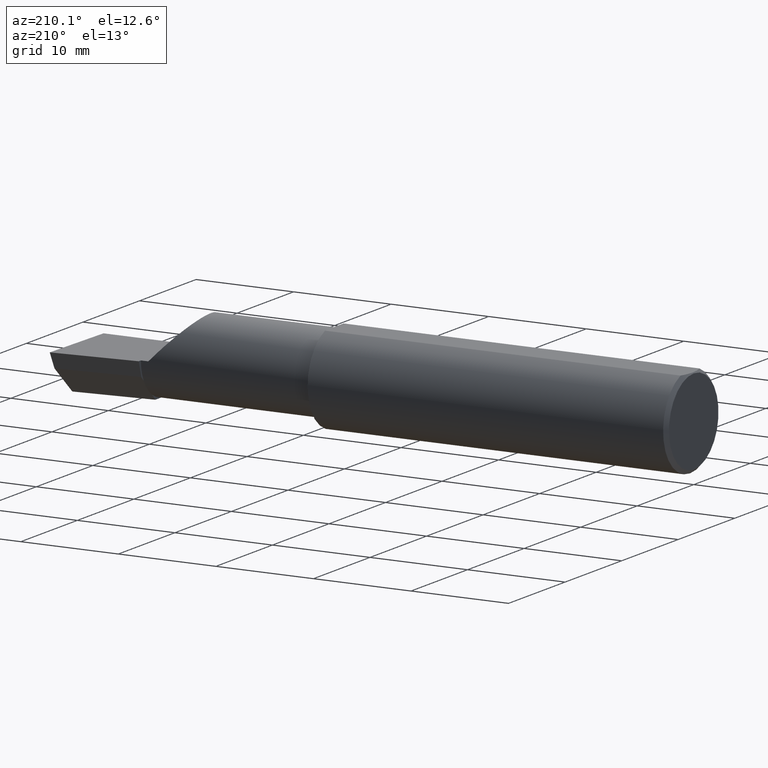
[diagram: clean part render]
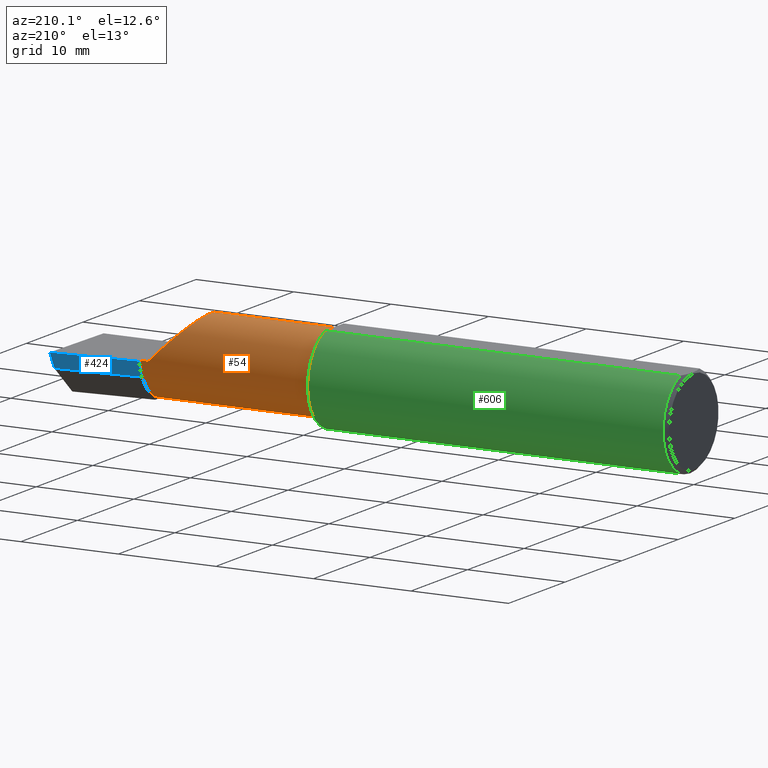
[diagram: same view with three faces highlighted in distinct colors, each labeled with its STEP entity id]
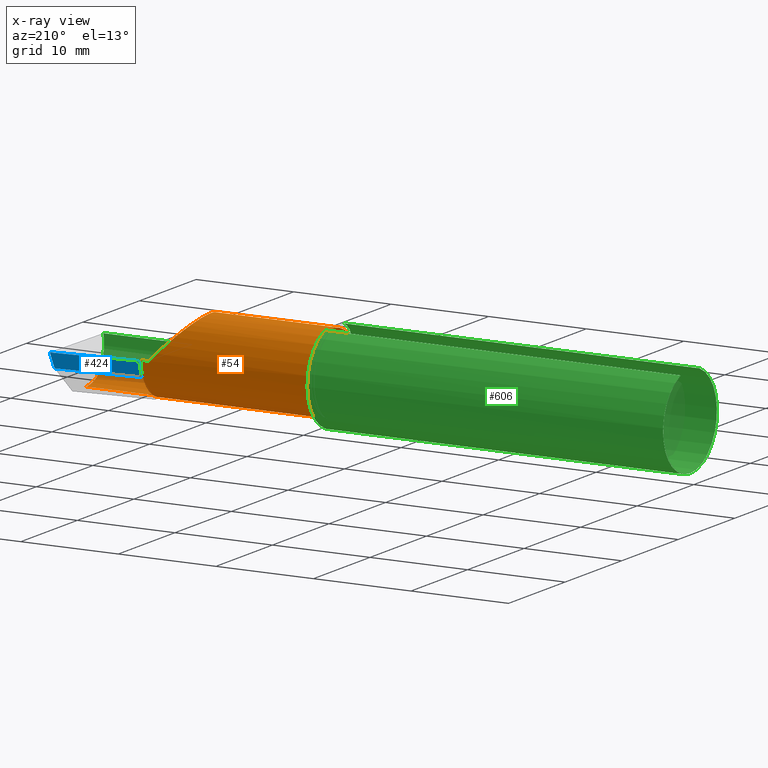
[diagram: x-ray of the same camera — body ghosted, the three highlighted faces saturated]
A machine part, auxiliary view with three faces highlighted in distinct colors.
The next image is the same camera in x-ray (body ghosted, the three faces saturated) — at least one of them is partly hidden behind the body in this view.
Their STEP definitions:

[orange] entity #54 — the highlighted cylindrical surface (partial cylindrical patch) has radius 4.0653 mm, axis along (-1, 0, -0).
#1 = EDGE_CURVE ( 'NONE', #325, #211, #90, .T. ) ;
#4 = CARTESIAN_POINT ( 'NONE',  ( 2.477223734188808812, -0.1454917112299466964, -0.1180346748349052066 ) ) ;
#6 = VERTEX_POINT ( 'NONE', #79 ) ;
#11 = CARTESIAN_POINT ( 'NONE',  ( 2.160000000000000142, -0.03740000000000000269, 0.000000000000000000 ) ) ;
#24 = ORIENTED_EDGE ( 'NONE', *, *, #335, .T. ) ;
#35 = VERTEX_POINT ( 'NONE', #41 ) ;
#41 = CARTESIAN_POINT ( 'NONE',  ( 2.160000000000000142, 0.1028057716897400747, -0.07719031082256667953 ) ) ;
#51 = CARTESIAN_POINT ( 'NONE',  ( 2.474893613600468445, -0.03739999999999999575, -0.1600499999999999701 ) ) ;
#54 = ADVANCED_FACE ( 'NONE', ( #178 ), #571, .T. ) ;
#62 = VERTEX_POINT ( 'NONE', #435 ) ;
#65 = VERTEX_POINT ( 'NONE', #550 ) ;
#79 = CARTESIAN_POINT ( 'NONE',  ( 2.129999999999999893, 0.1226499999999998147, 1.065442715258197396E-16 ) ) ;
#88 = VERTEX_POINT ( 'NONE', #485 ) ;
#90 = LINE ( 'NONE', #370, #378 ) ;
#100 = VECTOR ( 'NONE', #161, 39.37007874015748143 ) ;
#103 = CARTESIAN_POINT ( 'NONE',  ( 2.473833329693935656, -0.07789060880782654184, -0.1600499999999999701 ) ) ;
#104 = CARTESIAN_POINT ( 'NONE',  ( 2.500000000000000000, -0.03739999999999999575, -0.1600499999999999701 ) ) ;
#109 = CIRCLE ( 'NONE', #548, 0.1600499999999999423 ) ;
#111 = CARTESIAN_POINT ( 'NONE',  ( 2.160000000000000142, -0.03740000000000000269, 0.000000000000000000 ) ) ;
#128 = DIRECTION ( 'NONE',  ( -1.000000000000000000, 6.829619984160658046E-18, -0.000000000000000000 ) ) ;
#129 = VECTOR ( 'NONE', #266, 39.37007874015748143 ) ;
#132 = CARTESIAN_POINT ( 'NONE',  ( 0.000000000000000000, -0.03739999999999998881, 0.000000000000000000 ) ) ;
#134 = CARTESIAN_POINT ( 'NONE',  ( 2.160000000000000142, -0.03739999999999999575, -0.1600499999999999701 ) ) ;
#147 = DIRECTION ( 'NONE',  ( -1.000000000000000000, 6.829619984160658046E-18, -0.000000000000000000 ) ) ;
#154 = LINE ( 'NONE', #104, #100 ) ;
#157 = LINE ( 'NONE', #351, #129 ) ;
#161 = DIRECTION ( 'NONE',  ( -1.000000000000000000, 5.691349986800549142E-18, -0.000000000000000000 ) ) ;
#171 = EDGE_LOOP ( 'NONE', ( #345, #561, #248, #574, #24, #196, #311, #466, #483, #412 ) ) ;
#177 = CARTESIAN_POINT ( 'NONE',  ( 1.474999999999999867, -0.1454917112299468351, 0.1180346748349049985 ) ) ;
#178 = FACE_OUTER_BOUND ( 'NONE', #171, .T. ) ;
#190 = CIRCLE ( 'NONE', #391, 0.1600499999999999701 ) ;
#196 = ORIENTED_EDGE ( 'NONE', *, *, #630, .T. ) ;
#211 = VERTEX_POINT ( 'NONE', #594 ) ;
#229 = CIRCLE ( 'NONE', #479, 0.1600499999999999146 ) ;
#246 = EDGE_CURVE ( 'NONE', #601, #62, #560, .T. ) ;
#248 = ORIENTED_EDGE ( 'NONE', *, *, #622, .F. ) ;
#249 = CARTESIAN_POINT ( 'NONE',  ( 2.474646882977779239, -0.1156304438478838320, -0.1453804992321580947 ) ) ;
#259 =( BOUNDED_CURVE ( )  B_SPLINE_CURVE ( 3, ( #260, #460, #417, #513 ),
 .UNSPECIFIED., .F., .F. ) 
 B_SPLINE_CURVE_WITH_KNOTS ( ( 4, 4 ),
 ( 5.541729662751388119, 7.853981633974482790 ),
 .UNSPECIFIED. ) 
 CURVE ( )  GEOMETRIC_REPRESENTATION_ITEM ( )  RATIONAL_B_SPLINE_CURVE ( ( 1.000000000000000000, 0.6019254882129727591, 0.6019254882129727591, 1.000000000000000000 ) ) 
 REPRESENTATION_ITEM ( '' )  );
#260 = CARTESIAN_POINT ( 'NONE',  ( 2.011965325165093077, -0.1454917112299463633, 0.1180346748349055119 ) ) ;
#263 =( BOUNDED_CURVE ( )  B_SPLINE_CURVE ( 3, ( #4, #249, #103, #51 ),
 .UNSPECIFIED., .F., .F. ) 
 B_SPLINE_CURVE_WITH_KNOTS ( ( 4, 4 ),
 ( 5.751779107031784299, 6.493234751459985965 ),
 .UNSPECIFIED. ) 
 CURVE ( )  GEOMETRIC_REPRESENTATION_ITEM ( )  RATIONAL_B_SPLINE_CURVE ( ( 1.000000000000000000, 0.9547092712975351336, 0.9547092712975351336, 1.000000000000000000 ) ) 
 REPRESENTATION_ITEM ( '' )  );
#266 = DIRECTION ( 'NONE',  ( 1.000000000000000000, -6.829619984160658046E-18, 0.000000000000000000 ) ) ;
#284 = CARTESIAN_POINT ( 'NONE',  ( 2.160000000000000142, -0.03740000000000000269, 0.000000000000000000 ) ) ;
#301 = AXIS2_PLACEMENT_3D ( 'NONE', #132, #389, #310 ) ;
#303 = AXIS2_PLACEMENT_3D ( 'NONE', #284, #147, #427 ) ;
#310 = DIRECTION ( 'NONE',  ( -6.829619984160658816E-18, -1.000000000000000000, 0.000000000000000000 ) ) ;
#311 = ORIENTED_EDGE ( 'NONE', *, *, #525, .T. ) ;
#322 = DIRECTION ( 'NONE',  ( 1.000000000000000000, -6.829619984160658046E-18, 0.000000000000000000 ) ) ;
#325 = VERTEX_POINT ( 'NONE', #177 ) ;
#334 = VECTOR ( 'NONE', #128, 39.37007874015748143 ) ;
#335 = EDGE_CURVE ( 'NONE', #211, #6, #259, .T. ) ;
#344 = DIRECTION ( 'NONE',  ( -1.000000000000000000, 6.829619984160658046E-18, -0.000000000000000000 ) ) ;
#345 = ORIENTED_EDGE ( 'NONE', *, *, #535, .F. ) ;
#351 = CARTESIAN_POINT ( 'NONE',  ( 1.093080678464946554E-18, 0.1226499999999999257, 3.267291166268304703E-16 ) ) ;
#370 = CARTESIAN_POINT ( 'NONE',  ( 1.817499999999999893, -0.1454917112299466964, 0.1180346748349052066 ) ) ;
#378 = VECTOR ( 'NONE', #322, 39.37007874015748143 ) ;
#389 = DIRECTION ( 'NONE',  ( -1.000000000000000000, 6.829619984160658046E-18, -0.000000000000000000 ) ) ;
#391 = AXIS2_PLACEMENT_3D ( 'NONE', #111, #344, #539 ) ;
#410 = DIRECTION ( 'NONE',  ( 1.000000000000000000, -6.829619984160658046E-18, 0.000000000000000000 ) ) ;
#412 = ORIENTED_EDGE ( 'NONE', *, *, #599, .F. ) ;
#417 = CARTESIAN_POINT ( 'NONE',  ( 1.967758842172328437, 0.1226499999999999396, 0.1622411578276699295 ) ) ;
#423 = VERTEX_POINT ( 'NONE', #134 ) ;
#427 = DIRECTION ( 'NONE',  ( 0.000000000000000000, -1.000000000000000000, 0.000000000000000000 ) ) ;
#428 = CIRCLE ( 'NONE', #303, 0.1600499999999999701 ) ;
#435 = CARTESIAN_POINT ( 'NONE',  ( 1.474999999999999867, -0.1454917112299464743, -0.1180346748349053593 ) ) ;
#460 = CARTESIAN_POINT ( 'NONE',  ( 1.902393788885675230, -0.02584108761840239049, 0.2276062111143221656 ) ) ;
#461 = VERTEX_POINT ( 'NONE', #484 ) ;
#466 = ORIENTED_EDGE ( 'NONE', *, *, #554, .F. ) ;
#471 = EDGE_CURVE ( 'NONE', #461, #423, #428, .T. ) ;
#479 = AXIS2_PLACEMENT_3D ( 'NONE', #537, #542, #595 ) ;
#483 = ORIENTED_EDGE ( 'NONE', *, *, #471, .T. ) ;
#484 = CARTESIAN_POINT ( 'NONE',  ( 2.160000000000000142, 0.04400172171466205928, -0.1378033461200731946 ) ) ;
#485 = CARTESIAN_POINT ( 'NONE',  ( 2.474893613600468445, -0.03739999999999999575, -0.1600499999999999701 ) ) ;
#498 = CARTESIAN_POINT ( 'NONE',  ( 2.477223734188808812, -0.1454917112299466964, -0.1180346748349052066 ) ) ;
#501 = DIRECTION ( 'NONE',  ( 0.000000000000000000, -1.000000000000000000, -1.776356839400250465E-15 ) ) ;
#513 = CARTESIAN_POINT ( 'NONE',  ( 2.129999999999999893, 0.1226499999999998147, 1.065442715258197396E-16 ) ) ;
#525 = EDGE_CURVE ( 'NONE', #65, #35, #190, .T. ) ;
#535 = EDGE_CURVE ( 'NONE', #601, #88, #263, .T. ) ;
#537 = CARTESIAN_POINT ( 'NONE',  ( 1.474999999999999867, -0.03739999999999999575, 0.000000000000000000 ) ) ;
#539 = DIRECTION ( 'NONE',  ( 0.000000000000000000, -1.000000000000000000, 0.000000000000000000 ) ) ;
#542 = DIRECTION ( 'NONE',  ( -1.000000000000000000, 6.829619984160658046E-18, -0.000000000000000000 ) ) ;
#548 = AXIS2_PLACEMENT_3D ( 'NONE', #11, #410, #501 ) ;
#550 = CARTESIAN_POINT ( 'NONE',  ( 2.160000000000000142, 0.1226499999999999674, 3.267291166268306182E-16 ) ) ;
#554 = EDGE_CURVE ( 'NONE', #461, #35, #109, .T. ) ;
#560 = LINE ( 'NONE', #618, #334 ) ;
#561 = ORIENTED_EDGE ( 'NONE', *, *, #246, .T. ) ;
#571 = CYLINDRICAL_SURFACE ( 'NONE', #301, 0.1600499999999999423 ) ;
#574 = ORIENTED_EDGE ( 'NONE', *, *, #1, .T. ) ;
#594 = CARTESIAN_POINT ( 'NONE',  ( 2.011965325165093077, -0.1454917112299463633, 0.1180346748349055119 ) ) ;
#595 = DIRECTION ( 'NONE',  ( 0.000000000000000000, -1.000000000000000000, 0.000000000000000000 ) ) ;
#599 = EDGE_CURVE ( 'NONE', #88, #423, #154, .T. ) ;
#601 = VERTEX_POINT ( 'NONE', #498 ) ;
#618 = CARTESIAN_POINT ( 'NONE',  ( 1.817499999999999893, -0.1454917112299466964, -0.1180346748349052066 ) ) ;
#622 = EDGE_CURVE ( 'NONE', #325, #62, #229, .T. ) ;
#630 = EDGE_CURVE ( 'NONE', #6, #65, #157, .T. ) ;

[blue] entity #424 — the highlighted planar face has unit normal (-0.0917, 0.9519, -0.2924).
#5 = AXIS2_PLACEMENT_3D ( 'NONE', #89, #183, #293 ) ;
#36 = EDGE_CURVE ( 'NONE', #362, #386, #433, .T. ) ;
#45 = ORIENTED_EDGE ( 'NONE', *, *, #562, .T. ) ;
#50 = PLANE ( 'NONE',  #5 ) ;
#84 = CARTESIAN_POINT ( 'NONE',  ( 2.500188977433833504, 0.1711105994646693607, 0.001440373173035005379 ) ) ;
#89 = CARTESIAN_POINT ( 'NONE',  ( 2.509953961983671267, 0.1716084575252020683, -6.829619984160658046E-17 ) ) ;
#92 = EDGE_CURVE ( 'NONE', #156, #386, #448, .T. ) ;
#113 = ORIENTED_EDGE ( 'NONE', *, *, #36, .F. ) ;
#156 = VERTEX_POINT ( 'NONE', #635 ) ;
#162 = LINE ( 'NONE', #357, #261 ) ;
#183 = DIRECTION ( 'NONE',  ( -0.09165774897393340337, 0.9519021185660613282, -0.2923717047227306631 ) ) ;
#188 = VECTOR ( 'NONE', #451, 39.37007874015748143 ) ;
#226 = EDGE_CURVE ( 'NONE', #156, #415, #162, .T. ) ;
#227 = CARTESIAN_POINT ( 'NONE',  ( 2.160000000000000142, 0.1194830407249524440, -0.05999999999999999084 ) ) ;
#251 = VECTOR ( 'NONE', #333, 39.37007874015748143 ) ;
#261 = VECTOR ( 'NONE', #348, 39.37007874015748143 ) ;
#270 = EDGE_LOOP ( 'NONE', ( #113, #45, #490, #506 ) ) ;
#293 = DIRECTION ( 'NONE',  ( 0.000000000000000000, 0.2936076258024064023, 0.9559260233253795702 ) ) ;
#296 = LINE ( 'NONE', #491, #634 ) ;
#302 = CARTESIAN_POINT ( 'NONE',  ( 0.3393181374772696324, -0.03739999999999998881, 2.916527262322783071E-16 ) ) ;
#321 = CARTESIAN_POINT ( 'NONE',  ( 2.492127980275578913, 0.1514633278254541304, -0.05999999999999998390 ) ) ;
#329 = FACE_OUTER_BOUND ( 'NONE', #270, .T. ) ;
#333 = DIRECTION ( 'NONE',  ( 0.1240019227989975908, 0.3022330132596680041, 0.9451342385281219505 ) ) ;
#348 = DIRECTION ( 'NONE',  ( -2.005228508682078977E-18, -0.2936076258024064023, -0.9559260233253795702 ) ) ;
#357 = CARTESIAN_POINT ( 'NONE',  ( 2.160000000000000142, 0.1346188438362106166, -0.01072093908174519966 ) ) ;
#362 = VERTEX_POINT ( 'NONE', #321 ) ;
#386 = VERTEX_POINT ( 'NONE', #392 ) ;
#392 = CARTESIAN_POINT ( 'NONE',  ( 2.500000000000034195, 0.1706500000000318318, 9.292204874308774392E-14 ) ) ;
#415 = VERTEX_POINT ( 'NONE', #227 ) ;
#424 = ADVANCED_FACE ( 'NONE', ( #329 ), #50, .T. ) ;
#433 = LINE ( 'NONE', #84, #251 ) ;
#448 = LINE ( 'NONE', #302, #188 ) ;
#451 = DIRECTION ( 'NONE',  ( 0.9953961983671787417, 0.09584575252022459191, -1.028972571603813720E-16 ) ) ;
#490 = ORIENTED_EDGE ( 'NONE', *, *, #226, .F. ) ;
#491 = CARTESIAN_POINT ( 'NONE',  ( 2.511712141217646632, 0.1533490680423130470, -0.05999999999999999084 ) ) ;
#506 = ORIENTED_EDGE ( 'NONE', *, *, #92, .T. ) ;
#549 = DIRECTION ( 'NONE',  ( -0.9953961983671800740, -0.09584575252021031166, 0.000000000000000000 ) ) ;
#562 = EDGE_CURVE ( 'NONE', #362, #415, #296, .T. ) ;
#634 = VECTOR ( 'NONE', #549, 39.37007874015748854 ) ;
#635 = CARTESIAN_POINT ( 'NONE',  ( 2.160000000000000142, 0.1379117236128417356, 3.286754617377316716E-16 ) ) ;

[green] entity #606 — the highlighted cylindrical surface (partial cylindrical patch) has radius 4.7587 mm, axis along (-1, -0, -0).
#1 = EDGE_CURVE ( 'NONE', #325, #211, #90, .T. ) ;
#3 = ORIENTED_EDGE ( 'NONE', *, *, #240, .T. ) ;
#7 = CARTESIAN_POINT ( 'NONE',  ( 2.477223734188808812, -0.1454917112299466964, -0.1180346748349052066 ) ) ;
#9 = CARTESIAN_POINT ( 'NONE',  ( 1.458327409769773153, -0.1182546610979334223, 0.1455684145307631072 ) ) ;
#13 = ORIENTED_EDGE ( 'NONE', *, *, #488, .F. ) ;
#16 = CARTESIAN_POINT ( 'NONE',  ( 1.473888626799698676, -0.1454917112299466131, 0.1180346748349054009 ) ) ;
#25 =( BOUNDED_CURVE ( )  B_SPLINE_CURVE ( 3, ( #447, #403, #454, #591 ),
 .UNSPECIFIED., .F., .F. ) 
 B_SPLINE_CURVE_WITH_KNOTS ( ( 4, 4 ),
 ( 4.712388980384689674, 5.393970886271889142 ),
 .UNSPECIFIED. ) 
 CURVE ( )  GEOMETRIC_REPRESENTATION_ITEM ( )  RATIONAL_B_SPLINE_CURVE ( ( 1.000000000000000000, 0.9616603987079548332, 0.9616603987079548332, 1.000000000000000000 ) ) 
 REPRESENTATION_ITEM ( '' )  );
#26 = LINE ( 'NONE', #522, #102 ) ;
#39 = CARTESIAN_POINT ( 'NONE',  ( 1.470088327122037963, -0.1434986192849193043, -0.1204547541528185328 ) ) ;
#40 = VECTOR ( 'NONE', #476, 39.37007874015748143 ) ;
#44 = EDGE_CURVE ( 'NONE', #53, #475, #159, .T. ) ;
#48 = ORIENTED_EDGE ( 'NONE', *, *, #628, .T. ) ;
#53 = VERTEX_POINT ( 'NONE', #523 ) ;
#59 = CARTESIAN_POINT ( 'NONE',  ( 0.000000000000000000, -0.06597272163553657975, 0.1753499999999999781 ) ) ;
#62 = VERTEX_POINT ( 'NONE', #435 ) ;
#63 = CARTESIAN_POINT ( 'NONE',  ( 2.480648201915109929, -0.1728409665178087806, -0.08432347972837171690 ) ) ;
#75 = VERTEX_POINT ( 'NONE', #141 ) ;
#80 = AXIS2_PLACEMENT_3D ( 'NONE', #176, #373, #130 ) ;
#90 = LINE ( 'NONE', #370, #378 ) ;
#93 = CARTESIAN_POINT ( 'NONE',  ( 1.462916881138097036, -0.1325294370633277874, -0.1325423110575149888 ) ) ;
#95 = CARTESIAN_POINT ( 'NONE',  ( 1.449999999999999734, -0.04186526254461760133, -0.1829978128711760021 ) ) ;
#97 = DIRECTION ( 'NONE',  ( -1.000000000000000000, -0.000000000000000000, -0.000000000000000000 ) ) ;
#102 = VECTOR ( 'NONE', #365, 39.37007874015748143 ) ;
#105 = CARTESIAN_POINT ( 'NONE',  ( 1.474999999999999867, -0.1454917112299468351, 0.1180346748349049985 ) ) ;
#107 = EDGE_CURVE ( 'NONE', #536, #325, #371, .T. ) ;
#108 = CARTESIAN_POINT ( 'NONE',  ( 1.453931069367344842, -0.09745462642916678797, 0.1609342754328617620 ) ) ;
#128 = DIRECTION ( 'NONE',  ( -1.000000000000000000, 6.829619984160658046E-18, -0.000000000000000000 ) ) ;
#130 = DIRECTION ( 'NONE',  ( 0.000000000000000000, 0.000000000000000000, 1.000000000000000000 ) ) ;
#137 = VERTEX_POINT ( 'NONE', #533 ) ;
#139 = CARTESIAN_POINT ( 'NONE',  ( 1.457485333659844340, -0.1155414972264648399, -0.1479248906558525423 ) ) ;
#141 = CARTESIAN_POINT ( 'NONE',  ( 2.129999999999999893, -0.1873499999999999888, 1.065442715258197396E-16 ) ) ;
#145 = DIRECTION ( 'NONE',  ( 0.000000000000000000, 1.000000000000000000, 0.000000000000000000 ) ) ;
#151 = AXIS2_PLACEMENT_3D ( 'NONE', #495, #191, #145 ) ;
#159 = CIRCLE ( 'NONE', #80, 0.1873499999999999888 ) ;
#163 = ORIENTED_EDGE ( 'NONE', *, *, #583, .T. ) ;
#166 = EDGE_CURVE ( 'NONE', #279, #137, #446, .T. ) ;
#176 = CARTESIAN_POINT ( 'NONE',  ( 0.01499999999999999424, 0.000000000000000000, 0.000000000000000000 ) ) ;
#177 = CARTESIAN_POINT ( 'NONE',  ( 1.474999999999999867, -0.1454917112299468351, 0.1180346748349049985 ) ) ;
#186 = CARTESIAN_POINT ( 'NONE',  ( 1.464940665466612613, -0.1367234982206457783, 0.1281512008975648209 ) ) ;
#191 = DIRECTION ( 'NONE',  ( 1.000000000000000000, -6.829619984160658046E-18, 0.000000000000000000 ) ) ;
#194 = CARTESIAN_POINT ( 'NONE',  ( 1.467060058352116725, -0.1401415676386934539, -0.1243666343873858632 ) ) ;
#201 = CARTESIAN_POINT ( 'NONE',  ( 2.490625440078237940, -0.1873499999999999888, 6.926778495256700803E-17 ) ) ;
#210 = CARTESIAN_POINT ( 'NONE',  ( 2.490625440078237940, -0.1873499999999999888, 6.926778495256700803E-17 ) ) ;
#211 = VERTEX_POINT ( 'NONE', #594 ) ;
#218 = ORIENTED_EDGE ( 'NONE', *, *, #582, .T. ) ;
#233 = CARTESIAN_POINT ( 'NONE',  ( 1.465943198097122258, -0.1383011673991928203, -0.1264147259943153856 ) ) ;
#234 = VERTEX_POINT ( 'NONE', #210 ) ;
#240 = EDGE_CURVE ( 'NONE', #53, #137, #26, .T. ) ;
#245 = CARTESIAN_POINT ( 'NONE',  ( 0.000000000000000000, 0.000000000000000000, 0.000000000000000000 ) ) ;
#246 = EDGE_CURVE ( 'NONE', #601, #62, #560, .T. ) ;
#253 = DIRECTION ( 'NONE',  ( -1.000000000000000000, -0.000000000000000000, -0.000000000000000000 ) ) ;
#255 = ORIENTED_EDGE ( 'NONE', *, *, #44, .F. ) ;
#256 = DIRECTION ( 'NONE',  ( -1.000000000000000000, -0.000000000000000000, -0.000000000000000000 ) ) ;
#265 = ORIENTED_EDGE ( 'NONE', *, *, #246, .F. ) ;
#273 = AXIS2_PLACEMENT_3D ( 'NONE', #245, #256, #347 ) ;
#279 = VERTEX_POINT ( 'NONE', #474 ) ;
#289 = CARTESIAN_POINT ( 'NONE',  ( 1.450000000000000178, -0.03015080213903793827, -0.1849079544810676434 ) ) ;
#300 = CARTESIAN_POINT ( 'NONE',  ( 1.451116380138691264, -0.06597272163553657975, 0.1753499999999999781 ) ) ;
#304 = ORIENTED_EDGE ( 'NONE', *, *, #107, .F. ) ;
#306 = CARTESIAN_POINT ( 'NONE',  ( 1.470462485058698254, -0.1437494271365422627, 0.1201537477313809610 ) ) ;
#322 = DIRECTION ( 'NONE',  ( 1.000000000000000000, -6.829619984160658046E-18, 0.000000000000000000 ) ) ;
#325 = VERTEX_POINT ( 'NONE', #177 ) ;
#331 = CARTESIAN_POINT ( 'NONE',  ( 1.473475335450380896, -0.1454917112299464743, -0.1180346748349054287 ) ) ;
#334 = VECTOR ( 'NONE', #128, 39.37007874015748143 ) ;
#336 = CARTESIAN_POINT ( 'NONE',  ( 1.455627379275792777, -0.1060494212093229249, -0.1548887329701215676 ) ) ;
#337 = CARTESIAN_POINT ( 'NONE',  ( 1.463610562096348655, -0.1338335382286866548, 0.1311728947444868454 ) ) ;
#338 = CARTESIAN_POINT ( 'NONE',  ( 1.474999999999999867, -0.1454917112299464743, -0.1180346748349053593 ) ) ;
#340 = DIRECTION ( 'NONE',  ( 0.000000000000000000, 0.000000000000000000, 1.000000000000000000 ) ) ;
#346 = CYLINDRICAL_SURFACE ( 'NONE', #273, 0.1873499999999999888 ) ;
#347 = DIRECTION ( 'NONE',  ( 0.000000000000000000, 0.000000000000000000, 1.000000000000000000 ) ) ;
#365 = DIRECTION ( 'NONE',  ( 1.000000000000000000, 0.000000000000000000, 0.000000000000000000 ) ) ;
#370 = CARTESIAN_POINT ( 'NONE',  ( 1.817499999999999893, -0.1454917112299466964, 0.1180346748349052066 ) ) ;
#371 = B_SPLINE_CURVE_WITH_KNOTS ( 'NONE', 3,
 ( #581, #505, #108, #9, #393, #337, #186, #455, #499, #306, #629, #553, #16, #105 ),
 .UNSPECIFIED., .F., .F.,
 ( 4, 2, 2, 2, 2, 2, 4 ),
 ( 5.633523616098152958E-07, 0.001319819381107001062, 0.001979447395479695063, 0.002309261402666041522, 0.002474168406259215185, 0.002556621908055801799, 0.002639075409852388414 ),
 .UNSPECIFIED. ) ;
#373 = DIRECTION ( 'NONE',  ( -1.000000000000000000, -0.000000000000000000, -0.000000000000000000 ) ) ;
#378 = VECTOR ( 'NONE', #322, 39.37007874015748143 ) ;
#393 = CARTESIAN_POINT ( 'NONE',  ( 1.460055759795567898, -0.1247930883238195787, 0.1399914093379790725 ) ) ;
#395 = CARTESIAN_POINT ( 'NONE',  ( 1.452713316750944506, -0.08594842947873589101, -0.1668827936309216220 ) ) ;
#399 = EDGE_CURVE ( 'NONE', #234, #75, #527, .T. ) ;
#403 = CARTESIAN_POINT ( 'NONE',  ( 2.086590019116435268, -0.1873500000000000165, 0.04340998088356437523 ) ) ;
#421 = VERTEX_POINT ( 'NONE', #573 ) ;
#435 = CARTESIAN_POINT ( 'NONE',  ( 1.474999999999999867, -0.1454917112299464743, -0.1180346748349053593 ) ) ;
#440 =( BOUNDED_CURVE ( )  B_SPLINE_CURVE ( 3, ( #7, #63, #593, #201 ),
 .UNSPECIFIED., .F., .T. ) 
 B_SPLINE_CURVE_WITH_KNOTS ( ( 4, 4 ),
 ( 0.6791649766273002431, 1.360746882514497713 ),
 .UNSPECIFIED. ) 
 CURVE ( )  GEOMETRIC_REPRESENTATION_ITEM ( )  RATIONAL_B_SPLINE_CURVE ( ( 1.000000000000000000, 0.9616603987079549443, 0.9616603987079549443, 1.000000000000000000 ) ) 
 REPRESENTATION_ITEM ( '' )  );
#442 = ORIENTED_EDGE ( 'NONE', *, *, #399, .T. ) ;
#446 = CIRCLE ( 'NONE', #151, 0.1873499999999999888 ) ;
#447 = CARTESIAN_POINT ( 'NONE',  ( 2.129999999999999893, -0.1873499999999999888, 1.065442715258197396E-16 ) ) ;
#452 = B_SPLINE_CURVE_WITH_KNOTS ( 'NONE', 3,
 ( #338, #331, #636, #39, #530, #194, #233, #93, #620, #139, #336, #395, #532, #534, #95, #289 ),
 .UNSPECIFIED., .F., .F.,
 ( 4, 2, 2, 2, 2, 2, 2, 4 ),
 ( 1.966851289155074134E-07, 0.0001144729266691519735, 0.0002287491682093884362, 0.0004573016512898493810, 0.0009144066174507781012, 0.001828616549772637059, 0.002742826482094494391, 0.003657036414416352157 ),
 .UNSPECIFIED. ) ;
#454 = CARTESIAN_POINT ( 'NONE',  ( 2.045676520271626941, -0.1728409665178086418, 0.08432347972837203609 ) ) ;
#455 = CARTESIAN_POINT ( 'NONE',  ( 1.467580983404112915, -0.1407350872998845981, 0.1236837232298115402 ) ) ;
#464 = ORIENTED_EDGE ( 'NONE', *, *, #166, .F. ) ;
#470 = CIRCLE ( 'NONE', #580, 0.1873499999999999888 ) ;
#474 = CARTESIAN_POINT ( 'NONE',  ( 1.450000000000000178, -0.03015080213903793827, -0.1849079544810676434 ) ) ;
#475 = VERTEX_POINT ( 'NONE', #578 ) ;
#476 = DIRECTION ( 'NONE',  ( -1.000000000000000000, -0.000000000000000000, -0.000000000000000000 ) ) ;
#488 = EDGE_CURVE ( 'NONE', #62, #279, #452, .T. ) ;
#494 = EDGE_CURVE ( 'NONE', #475, #421, #470, .T. ) ;
#495 = CARTESIAN_POINT ( 'NONE',  ( 1.450000000000000178, 0.000000000000000000, 0.000000000000000000 ) ) ;
#498 = CARTESIAN_POINT ( 'NONE',  ( 2.477223734188808812, -0.1454917112299466964, -0.1180346748349052066 ) ) ;
#499 = CARTESIAN_POINT ( 'NONE',  ( 1.468558384071251943, -0.1420205060553824117, 0.1222022583412215174 ) ) ;
#500 = ORIENTED_EDGE ( 'NONE', *, *, #494, .F. ) ;
#505 = CARTESIAN_POINT ( 'NONE',  ( 1.452180260693408664, -0.08231188685414662920, 0.1692026421515574475 ) ) ;
#508 = VECTOR ( 'NONE', #253, 39.37007874015748143 ) ;
#522 = CARTESIAN_POINT ( 'NONE',  ( 0.000000000000000000, 0.06597272163553663527, 0.1753499999999999781 ) ) ;
#523 = CARTESIAN_POINT ( 'NONE',  ( 0.01499999999999999424, 0.06597272163553663527, 0.1753499999999999781 ) ) ;
#527 = LINE ( 'NONE', #625, #40 ) ;
#530 = CARTESIAN_POINT ( 'NONE',  ( 1.469258671360876400, -0.1426776373316537005, -0.1214281201482018541 ) ) ;
#532 = CARTESIAN_POINT ( 'NONE',  ( 1.451697995486591397, -0.07541755249016959817, -0.1718998534213997953 ) ) ;
#533 = CARTESIAN_POINT ( 'NONE',  ( 1.450000000000000178, 0.06597272163553663527, 0.1753499999999999781 ) ) ;
#534 = CARTESIAN_POINT ( 'NONE',  ( 1.450336700870085815, -0.05340758954924511998, -0.1799583179751510775 ) ) ;
#536 = VERTEX_POINT ( 'NONE', #300 ) ;
#544 = LINE ( 'NONE', #59, #508 ) ;
#553 = CARTESIAN_POINT ( 'NONE',  ( 1.472867149423749522, -0.1451640434845488103, 0.1184394021563245497 ) ) ;
#560 = LINE ( 'NONE', #618, #334 ) ;
#573 = CARTESIAN_POINT ( 'NONE',  ( 0.01499999999999997863, -0.06597272163553657975, 0.1753499999999999781 ) ) ;
#578 = CARTESIAN_POINT ( 'NONE',  ( 0.01499999999999999424, 0.000000000000000000, -0.1873499999999999888 ) ) ;
#580 = AXIS2_PLACEMENT_3D ( 'NONE', #584, #97, #340 ) ;
#581 = CARTESIAN_POINT ( 'NONE',  ( 1.451116380138691264, -0.06597272163553657975, 0.1753499999999999781 ) ) ;
#582 = EDGE_CURVE ( 'NONE', #75, #211, #25, .T. ) ;
#583 = EDGE_CURVE ( 'NONE', #601, #234, #440, .T. ) ;
#584 = CARTESIAN_POINT ( 'NONE',  ( 0.01499999999999999424, 0.000000000000000000, 0.000000000000000000 ) ) ;
#591 = CARTESIAN_POINT ( 'NONE',  ( 2.011965325165093077, -0.1454917112299463633, 0.1180346748349055119 ) ) ;
#592 = EDGE_LOOP ( 'NONE', ( #265, #163, #442, #218, #607, #304, #48, #500, #255, #3, #464, #13 ) ) ;
#593 = CARTESIAN_POINT ( 'NONE',  ( 2.485293537526806595, -0.1873499999999999888, -0.04340998088356418788 ) ) ;
#594 = CARTESIAN_POINT ( 'NONE',  ( 2.011965325165093077, -0.1454917112299463633, 0.1180346748349055119 ) ) ;
#598 = FACE_OUTER_BOUND ( 'NONE', #592, .T. ) ;
#601 = VERTEX_POINT ( 'NONE', #498 ) ;
#606 = ADVANCED_FACE ( 'NONE', ( #598 ), #346, .T. ) ;
#607 = ORIENTED_EDGE ( 'NONE', *, *, #1, .F. ) ;
#618 = CARTESIAN_POINT ( 'NONE',  ( 1.817499999999999893, -0.1454917112299466964, -0.1180346748349052066 ) ) ;
#620 = CARTESIAN_POINT ( 'NONE',  ( 1.461427394884100117, -0.1284293148232735493, -0.1365241029388008509 ) ) ;
#625 = CARTESIAN_POINT ( 'NONE',  ( 3.377502344341257155E-32, -0.1873499999999999610, 3.267291166268304703E-16 ) ) ;
#628 = EDGE_CURVE ( 'NONE', #536, #421, #544, .T. ) ;
#629 = CARTESIAN_POINT ( 'NONE',  ( 1.471175406146074893, -0.1442942897112278189, 0.1194974872566942903 ) ) ;
#636 = CARTESIAN_POINT ( 'NONE',  ( 1.472144995725004568, -0.1448851833857931759, -0.1187833539262099225 ) ) ;